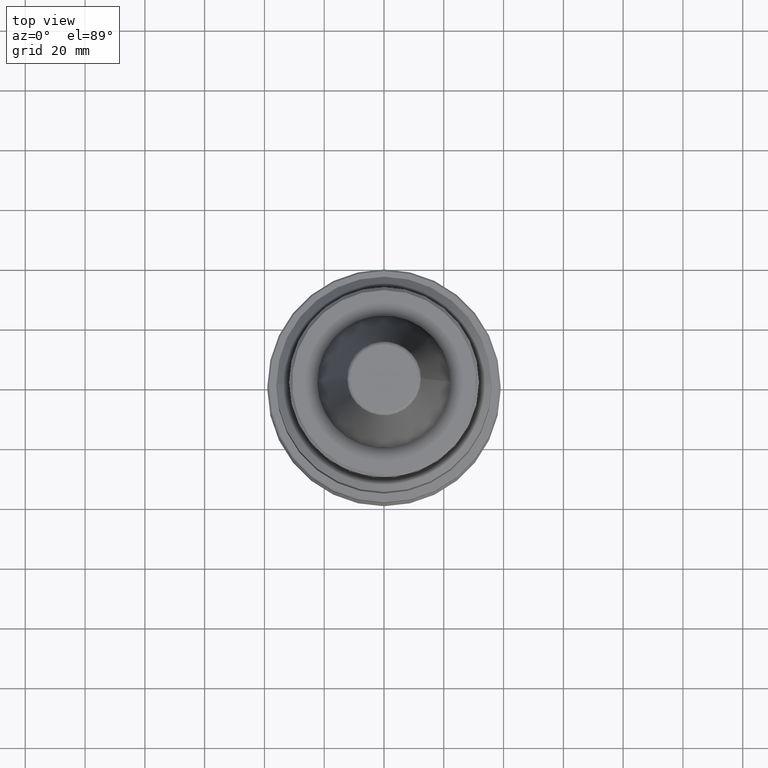
[diagram: clean part render]
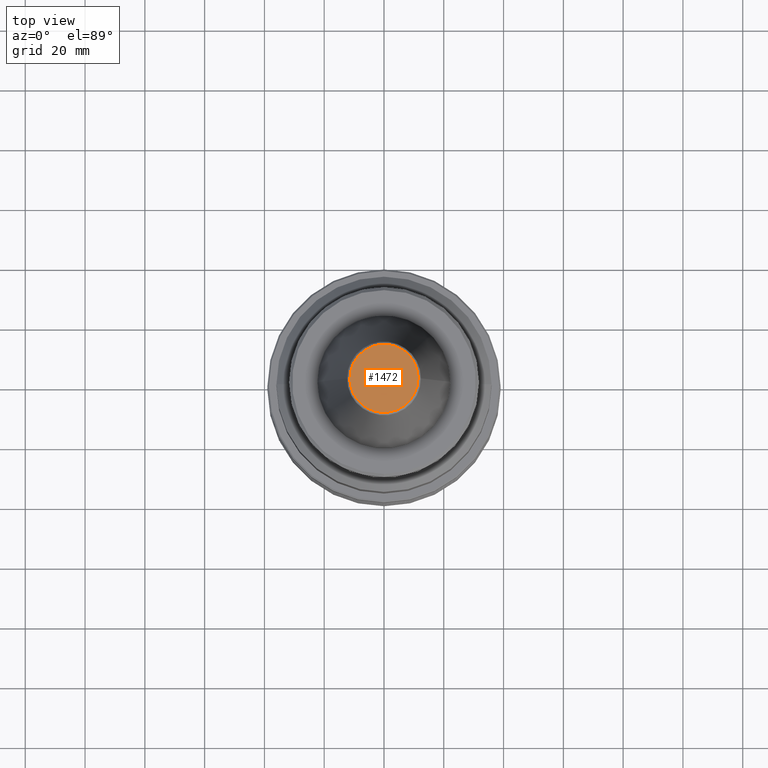
[diagram: same view with one face highlighted and labeled with its STEP entity id]
A machine part, top view. The second image highlights one B-rep face of the part: STEP entity #1472.
In plain terms, the highlighted planar face has unit normal (0, 0, 1).
Its self-contained STEP definition (entity closure, byte-faithful):
#4 = EDGE_CURVE ( 'NONE', #1756, #1130, #598, .T. ) ;
#13 = PLANE ( 'NONE',  #715 ) ;
#32 = CARTESIAN_POINT ( 'NONE',  ( -11.52178454100000100, -11.52178454100000100, 68.40000000000000600 ) ) ;
#191 = CARTESIAN_POINT ( 'NONE',  ( 11.38516258736446900, 22.77032517488440200, 68.39999999971480800 ) ) ;
#445 = EDGE_LOOP ( 'NONE', ( #1395, #1204 ) ) ;
#539 = CARTESIAN_POINT ( 'NONE',  ( -11.38516258736446900, 22.77032517488440200, 68.39999999971480800 ) ) ;
#584 = EDGE_CURVE ( 'NONE', #1130, #1756, #1263, .T. ) ;
#598 =( BOUNDED_CURVE ( )  B_SPLINE_CURVE ( 3, ( #1758, #539, #191, #2253 ),
 .UNSPECIFIED., .F., .T. ) 
 B_SPLINE_CURVE_WITH_KNOTS ( ( 4, 4 ),
 ( 0.0000000000000000000, 1.000000000000000000 ),
 .UNSPECIFIED. ) 
 CURVE ( )  GEOMETRIC_REPRESENTATION_ITEM ( )  RATIONAL_B_SPLINE_CURVE ( ( 0.9606698264625278500, 0.3202232754875091200, 0.3202232754875091200, 0.9606698264625278500 ) ) 
 REPRESENTATION_ITEM ( '' )  );
#686 = CARTESIAN_POINT ( 'NONE',  ( -11.38516258738788200, 0.0000000000000000000, 68.39999999982889300 ) ) ;
#702 = DIRECTION ( 'NONE',  ( 1.000000000000000000, 0.0000000000000000000, -0.0000000000000000000 ) ) ;
#715 = AXIS2_PLACEMENT_3D ( 'NONE', #32, #771, #702 ) ;
#723 = CARTESIAN_POINT ( 'NONE',  ( 11.38516258738788000, 0.0000000000000000000, 68.39999999982889300 ) ) ;
#771 = DIRECTION ( 'NONE',  ( 0.0000000000000000000, 0.0000000000000000000, 1.000000000000000000 ) ) ;
#970 = FACE_OUTER_BOUND ( 'NONE', #445, .T. ) ;
#1130 = VERTEX_POINT ( 'NONE', #723 ) ;
#1204 = ORIENTED_EDGE ( 'NONE', *, *, #584, .F. ) ;
#1263 =( BOUNDED_CURVE ( )  B_SPLINE_CURVE ( 3, ( #2296, #2082, #1411, #2171 ),
 .UNSPECIFIED., .F., .T. ) 
 B_SPLINE_CURVE_WITH_KNOTS ( ( 4, 4 ),
 ( 0.0000000000000000000, 1.000000000000000000 ),
 .UNSPECIFIED. ) 
 CURVE ( )  GEOMETRIC_REPRESENTATION_ITEM ( )  RATIONAL_B_SPLINE_CURVE ( ( 0.9606698264625276300, 0.3202232754875091200, 0.3202232754875091200, 0.9606698264625276300 ) ) 
 REPRESENTATION_ITEM ( '' )  );
#1395 = ORIENTED_EDGE ( 'NONE', *, *, #4, .F. ) ;
#1411 = CARTESIAN_POINT ( 'NONE',  ( -11.38516258736446900, -22.77032517488440200, 68.39999999971479400 ) ) ;
#1472 = ADVANCED_FACE ( 'NONE', ( #970 ), #13, .T. ) ;
#1756 = VERTEX_POINT ( 'NONE', #686 ) ;
#1758 = CARTESIAN_POINT ( 'NONE',  ( -11.38516258738788200, 0.0000000000000000000, 68.39999999982889300 ) ) ;
#2082 = CARTESIAN_POINT ( 'NONE',  ( 11.38516258736446900, -22.77032517488440200, 68.39999999971479400 ) ) ;
#2171 = CARTESIAN_POINT ( 'NONE',  ( -11.38516258738788200, 0.0000000000000000000, 68.39999999982889300 ) ) ;
#2253 = CARTESIAN_POINT ( 'NONE',  ( 11.38516258738788000, 0.0000000000000000000, 68.39999999982889300 ) ) ;
#2296 = CARTESIAN_POINT ( 'NONE',  ( 11.38516258738787800, 0.0000000000000000000, 68.39999999982889300 ) ) ;